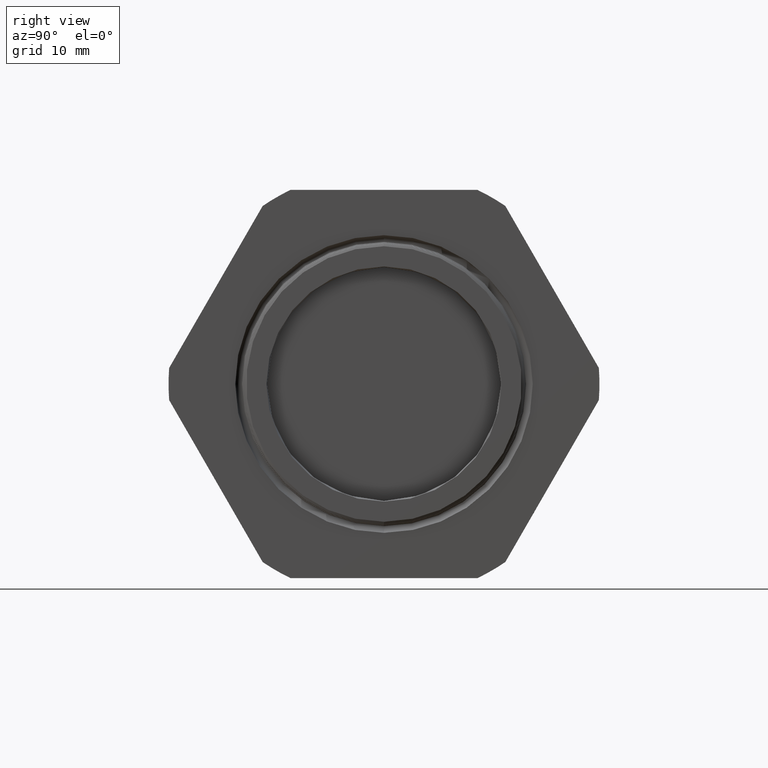
[diagram: clean part render]
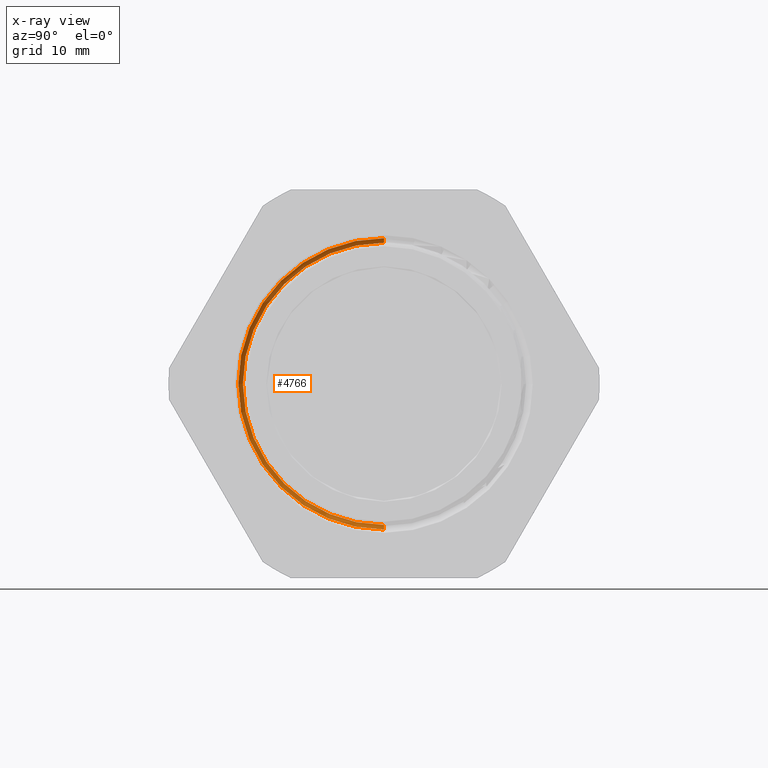
[diagram: x-ray — body ghosted, one internal face saturated and labeled with its STEP entity id]
A machine part, right view, then the same camera in x-ray: the body is ghosted and one INTERNAL B-rep face — a face not visible from any outside direction — is saturated and labeled: STEP entity #4766.
In plain terms, the highlighted conical surface has half-angle 58.5 deg.
Its self-contained STEP definition (entity closure, byte-faithful):
#2396 = CARTESIAN_POINT ( 'NONE',  ( -1.005028413065896000, 9.458135428463890800E-017, -0.7596307351718083500 ) ) ;
#2397 = CARTESIAN_POINT ( 'NONE',  ( -1.005028413065896000, 0.0000000000000000000, 0.7596307351718083500 ) ) ;
#2442 = CARTESIAN_POINT ( 'NONE',  ( -0.9899451787163990900, 9.604223165573155900E-017, -0.7842443365923946800 ) ) ;
#2447 = DIRECTION ( 'NONE',  ( 0.5224985647159307000, 0.0000000000000000000, -0.8526401643541033900 ) ) ;
#2448 = VECTOR ( 'NONE', #2447, 39.37007874015748100 ) ;
#2449 = CARTESIAN_POINT ( 'NONE',  ( -1.005028413065896000, 0.0000000000000000000, -0.7596307351718083500 ) ) ;
#2450 = LINE ( 'NONE', #2449, #2448 ) ;
#2480 = CARTESIAN_POINT ( 'NONE',  ( -0.9899451787163990900, 0.0000000000000000000, 0.7842443365923946800 ) ) ;
#2481 = DIRECTION ( 'NONE',  ( 0.5224985647159307000, 1.044183048100725800E-016, 0.8526401643541033900 ) ) ;
#2482 = VECTOR ( 'NONE', #2481, 39.37007874015748100 ) ;
#2483 = CARTESIAN_POINT ( 'NONE',  ( -1.005028413065896000, 9.302793483621059200E-017, 0.7596307351718083500 ) ) ;
#2484 = LINE ( 'NONE', #2483, #2482 ) ;
#3103 = CARTESIAN_POINT ( 'NONE',  ( -1.005028413065896000, 0.0000000000000000000, 0.0000000000000000000 ) ) ;
#3133 = CONICAL_SURFACE ( 'NONE', #3193, 0.7596307351718083500, 1.021017612416704100 ) ;
#3134 = FACE_OUTER_BOUND ( 'NONE', #4753, .T. ) ;
#3139 = CARTESIAN_POINT ( 'NONE',  ( -1.005028413065896000, 0.0000000000000000000, 0.0000000000000000000 ) ) ;
#3158 = DIRECTION ( 'NONE',  ( 0.0000000000000000000, 0.0000000000000000000, -1.000000000000000000 ) ) ;
#3159 = DIRECTION ( 'NONE',  ( 1.000000000000000000, 0.0000000000000000000, 0.0000000000000000000 ) ) ;
#3160 = AXIS2_PLACEMENT_3D ( 'NONE', #3103, #3159, #3158 ) ;
#3161 = CIRCLE ( 'NONE', #3160, 0.7596307351718083500 ) ;
#3191 = DIRECTION ( 'NONE',  ( 0.0000000000000000000, 0.0000000000000000000, -1.000000000000000000 ) ) ;
#3192 = DIRECTION ( 'NONE',  ( 1.000000000000000000, 0.0000000000000000000, 0.0000000000000000000 ) ) ;
#3193 = AXIS2_PLACEMENT_3D ( 'NONE', #3139, #3192, #3191 ) ;
#3528 = DIRECTION ( 'NONE',  ( 0.0000000000000000000, 0.0000000000000000000, -1.000000000000000000 ) ) ;
#3529 = DIRECTION ( 'NONE',  ( 1.000000000000000000, 0.0000000000000000000, 0.0000000000000000000 ) ) ;
#3530 = CARTESIAN_POINT ( 'NONE',  ( -0.9899451787163990900, 0.0000000000000000000, 0.0000000000000000000 ) ) ;
#3531 = AXIS2_PLACEMENT_3D ( 'NONE', #3530, #3529, #3528 ) ;
#3532 = CIRCLE ( 'NONE', #3531, 0.7842443365923947900 ) ;
#4309 = VERTEX_POINT ( 'NONE', #2397 ) ;
#4312 = VERTEX_POINT ( 'NONE', #2396 ) ;
#4352 = EDGE_CURVE ( 'NONE', #4312, #4357, #2450, .T. ) ;
#4357 = VERTEX_POINT ( 'NONE', #2442 ) ;
#4369 = EDGE_CURVE ( 'NONE', #4309, #4370, #2484, .T. ) ;
#4370 = VERTEX_POINT ( 'NONE', #2480 ) ;
#4737 = EDGE_CURVE ( 'NONE', #4309, #4312, #3161, .T. ) ;
#4753 = EDGE_LOOP ( 'NONE', ( #4756, #4768, #4761, #4758 ) ) ;
#4756 = ORIENTED_EDGE ( 'NONE', *, *, #4369, .F. ) ;
#4758 = ORIENTED_EDGE ( 'NONE', *, *, #5022, .F. ) ;
#4761 = ORIENTED_EDGE ( 'NONE', *, *, #4352, .T. ) ;
#4766 = ADVANCED_FACE ( 'NONE', ( #3134 ), #3133, .T. ) ;
#4768 = ORIENTED_EDGE ( 'NONE', *, *, #4737, .T. ) ;
#5022 = EDGE_CURVE ( 'NONE', #4370, #4357, #3532, .T. ) ;